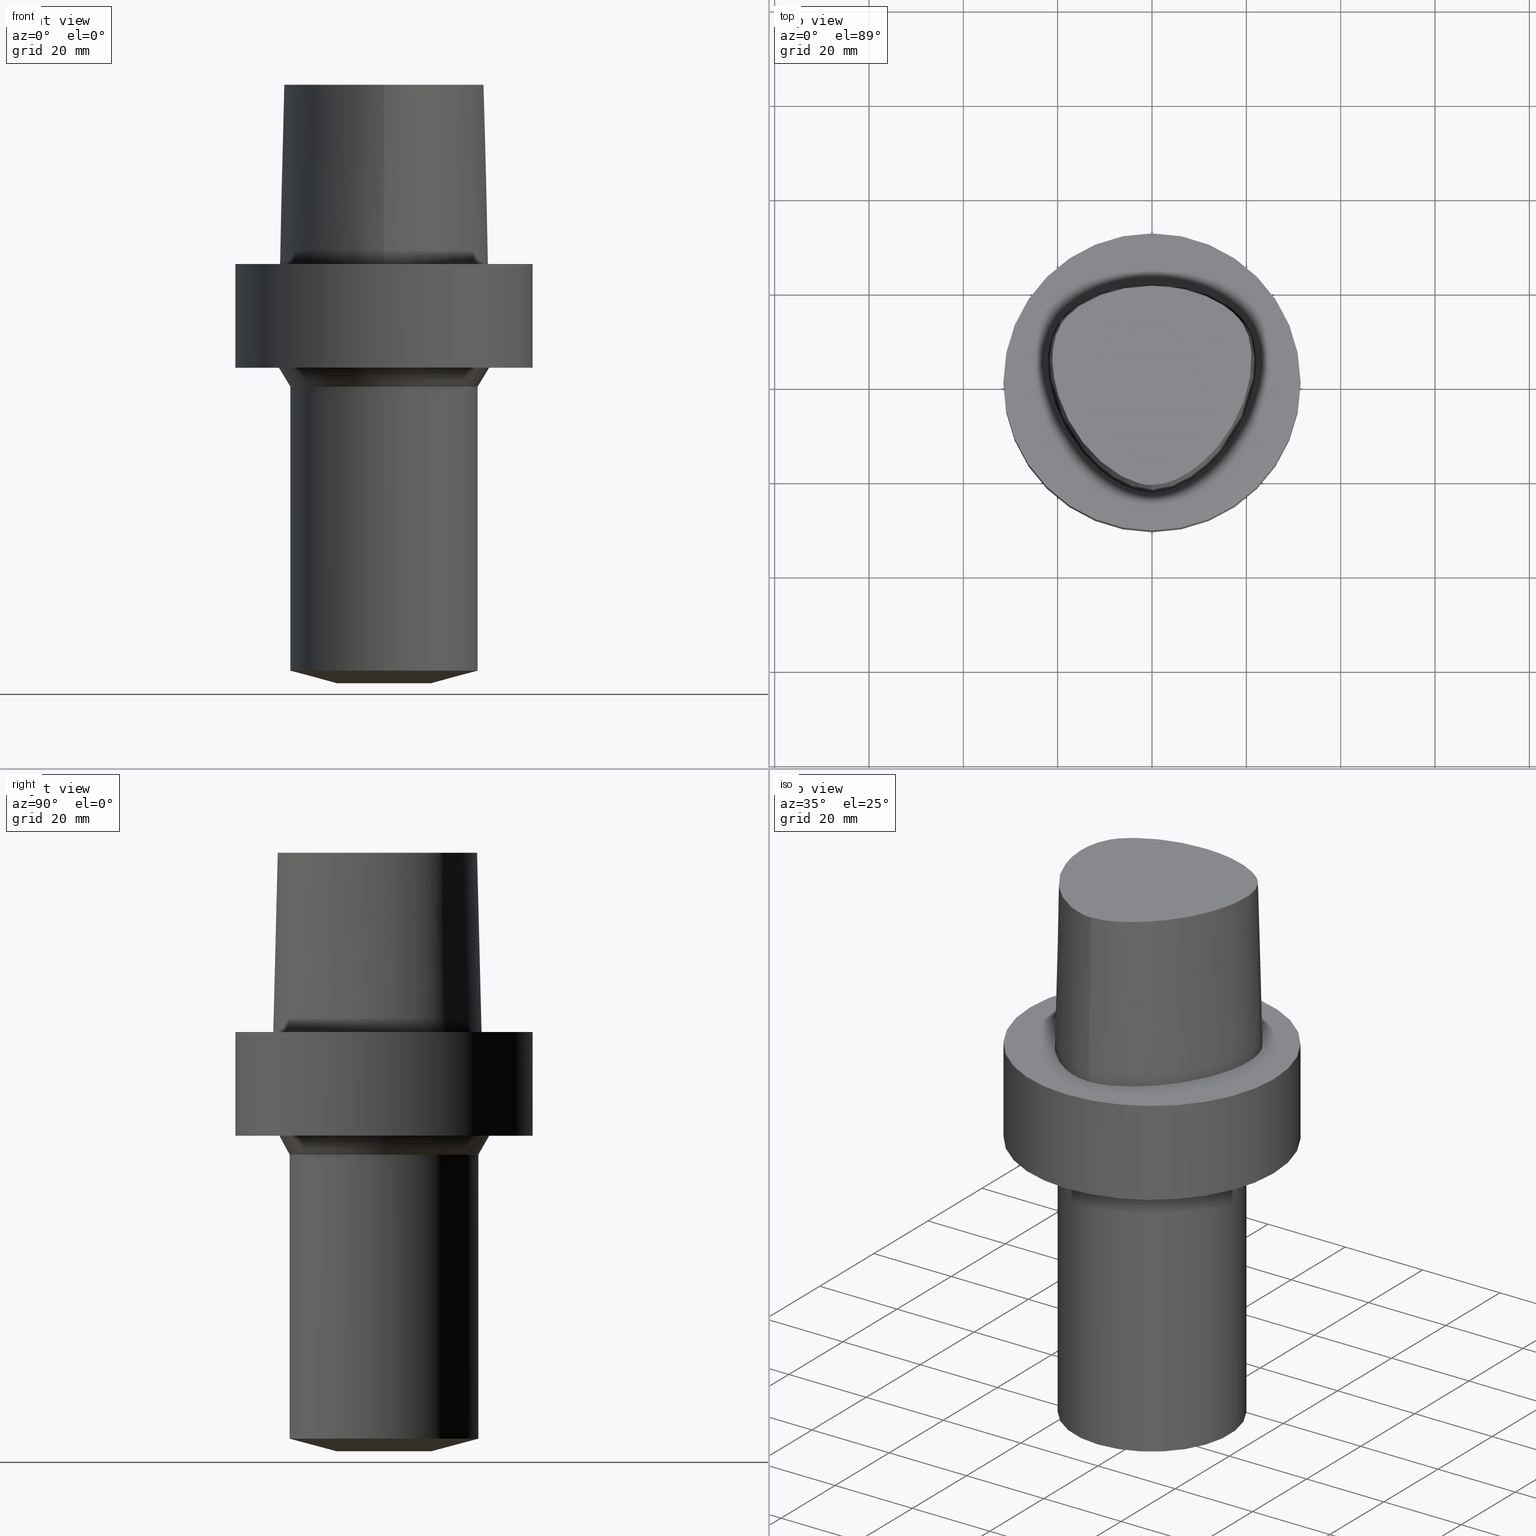
[diagram: canonical four-view strip — front | top / right | iso, engineering-drawing reading convention]
A machine part, canonical four-view strip (front | top / right | iso — engineering-drawing reading convention). The complete STEP part file that produces these views, byte-faithful:
ISO-10303-21;
HEADER;
FILE_DESCRIPTION((''),'1');
FILE_NAME('V:/01_Dxf_Field-HP\X2\FF71FF6FFF8CFF9F5916\X0\2013/BIGKAISER\X2\FF76FF80FF9BFF78FF9E63B28F095206\X0\_BKUS_201803/C6-BSL/C6-BSL.625-3.5.stp','2018-03-14T07:33:26',(''),(''),'Spatial Interop R21 SP3','Kubotek KeyCreator 2011 V10.0.2 (22737)',' ');
FILE_SCHEMA(('automotive_design'));
ENDSEC;
DATA;
#1=MECHANICAL_DESIGN_GEOMETRIC_PRESENTATION_REPRESENTATION(' ',(#10,#11,#12,#13,#14,#15,#16,#17,#18,#19,#20,#21,#22,#23,#24,#25,#26,#27,#28,#29,#30,#31,#32,#33,#34,#35),#6);
#2=PRODUCT_DEFINITION_CONTEXT('',#36,'design');
#3=APPLICATION_PROTOCOL_DEFINITION('INTERNATIONAL STANDARD','automotive_design',1994,#36);
#4=PRODUCT_CATEGORY_RELATIONSHIP('NONE','NONE',#37,#38);
#5=SHAPE_DEFINITION_REPRESENTATION(#39,#40);
#6= (GEOMETRIC_REPRESENTATION_CONTEXT(3)GLOBAL_UNCERTAINTY_ASSIGNED_CONTEXT((#43))GLOBAL_UNIT_ASSIGNED_CONTEXT((#45,#46,#47))REPRESENTATION_CONTEXT('NONE','WORKSPACE'));
#10=STYLED_ITEM('',(#49),#50);
#11=STYLED_ITEM('',(#51,#52),#53);
#12=STYLED_ITEM('',(#54,#55),#56);
#13=STYLED_ITEM('',(#57,#58),#59);
#14=STYLED_ITEM('',(#60,#61),#62);
#15=STYLED_ITEM('',(#63),#64);
#16=STYLED_ITEM('',(#65,#66),#67);
#17=STYLED_ITEM('',(#68),#69);
#18=STYLED_ITEM('',(#70),#71);
#19=STYLED_ITEM('',(#72),#73);
#20=STYLED_ITEM('',(#74),#75);
#21=STYLED_ITEM('',(#76),#77);
#22=STYLED_ITEM('',(#78,#79),#80);
#23=STYLED_ITEM('',(#81,#82),#83);
#24=STYLED_ITEM('',(#84),#85);
#25=STYLED_ITEM('',(#86),#87);
#26=STYLED_ITEM('',(#88),#89);
#27=STYLED_ITEM('',(#90),#91);
#28=STYLED_ITEM('',(#92,#93),#94);
#29=STYLED_ITEM('',(#95),#96);
#30=STYLED_ITEM('',(#97),#98);
#31=STYLED_ITEM('',(#99,#100),#101);
#32=STYLED_ITEM('',(#102,#103),#104);
#33=STYLED_ITEM('',(#105,#106),#107);
#34=STYLED_ITEM('',(#108,#109),#110);
#35=STYLED_ITEM('',(#111),#112);
#36=APPLICATION_CONTEXT(' ');
#37=PRODUCT_CATEGORY('part','NONE');
#38=PRODUCT_RELATED_PRODUCT_CATEGORY('detail',' ',(#113));
#39=PRODUCT_DEFINITION_SHAPE('NONE','NONE',#114);
#40=ADVANCED_BREP_SHAPE_REPRESENTATION('Unnamed[1]',(#53,#115),#6);
#43=UNCERTAINTY_MEASURE_WITH_UNIT(LENGTH_MEASURE(1.0E-006),#45,'','');
#45= (CONVERSION_BASED_UNIT('MILLIMETRE',#118)LENGTH_UNIT()NAMED_UNIT(#121));
#46= (NAMED_UNIT(#123)PLANE_ANGLE_UNIT()SI_UNIT($,.RADIAN.));
#47= (NAMED_UNIT(#123)SOLID_ANGLE_UNIT()SI_UNIT($,.STERADIAN.));
#49=PRESENTATION_STYLE_ASSIGNMENT((#129));
#50=EDGE_CURVE('Unnamed[1]',#130,#131,#132,.T.);
#51=PRESENTATION_STYLE_ASSIGNMENT((#133));
#52=PRESENTATION_STYLE_ASSIGNMENT((#134));
#53=MANIFOLD_SOLID_BREP('Unnamed[1]',#135);
#54=PRESENTATION_STYLE_ASSIGNMENT((#136));
#55=PRESENTATION_STYLE_ASSIGNMENT((#137));
#56=ADVANCED_FACE('Unnamed[1]',(#138),#139,.T.);
#57=PRESENTATION_STYLE_ASSIGNMENT((#140));
#58=PRESENTATION_STYLE_ASSIGNMENT((#141));
#59=ADVANCED_FACE('Unnamed[1]',(#142),#143,.T.);
#60=PRESENTATION_STYLE_ASSIGNMENT((#144));
#61=PRESENTATION_STYLE_ASSIGNMENT((#145));
#62=ADVANCED_FACE('Unnamed[1]',(#146,#147),#148,.T.);
#63=PRESENTATION_STYLE_ASSIGNMENT((#149));
#64=EDGE_CURVE('Unnamed[1]',#130,#150,#151,.T.);
#65=PRESENTATION_STYLE_ASSIGNMENT((#152));
#66=PRESENTATION_STYLE_ASSIGNMENT((#153));
#67=ADVANCED_FACE('Unnamed[1]',(#154,#155),#156,.T.);
#68=PRESENTATION_STYLE_ASSIGNMENT((#157));
#69=EDGE_CURVE('Unnamed[1]',#158,#158,#159,.T.);
#70=PRESENTATION_STYLE_ASSIGNMENT((#160));
#71=EDGE_CURVE('Unnamed[1]',#150,#161,#162,.T.);
#72=PRESENTATION_STYLE_ASSIGNMENT((#163));
#73=EDGE_CURVE('Unnamed[1]',#150,#164,#165,.T.);
#74=PRESENTATION_STYLE_ASSIGNMENT((#166));
#75=EDGE_CURVE('Unnamed[1]',#167,#167,#168,.T.);
#76=PRESENTATION_STYLE_ASSIGNMENT((#169));
#77=EDGE_CURVE('Unnamed[1]',#170,#170,#171,.T.);
#78=PRESENTATION_STYLE_ASSIGNMENT((#172));
#79=PRESENTATION_STYLE_ASSIGNMENT((#173));
#80=ADVANCED_FACE('Unnamed[1]',(#174,#175),#176,.T.);
#81=PRESENTATION_STYLE_ASSIGNMENT((#177));
#82=PRESENTATION_STYLE_ASSIGNMENT((#178));
#83=ADVANCED_FACE('Unnamed[1]',(#179,#180),#181,.T.);
#84=PRESENTATION_STYLE_ASSIGNMENT((#182));
#85=EDGE_CURVE('Unnamed[1]',#161,#131,#183,.T.);
#86=PRESENTATION_STYLE_ASSIGNMENT((#184));
#87=EDGE_CURVE('Unnamed[1]',#131,#164,#185,.T.);
#88=PRESENTATION_STYLE_ASSIGNMENT((#186));
#89=EDGE_CURVE('Unnamed[1]',#150,#130,#187,.T.);
#90=PRESENTATION_STYLE_ASSIGNMENT((#188));
#91=EDGE_CURVE('Unnamed[1]',#164,#161,#189,.T.);
#92=PRESENTATION_STYLE_ASSIGNMENT((#190));
#93=PRESENTATION_STYLE_ASSIGNMENT((#191));
#94=ADVANCED_FACE('Unnamed[1]',(#192),#193,.T.);
#95=PRESENTATION_STYLE_ASSIGNMENT((#194));
#96=EDGE_CURVE('Unnamed[1]',#195,#195,#196,.T.);
#97=PRESENTATION_STYLE_ASSIGNMENT((#197));
#98=EDGE_CURVE('Unnamed[1]',#198,#198,#199,.T.);
#99=PRESENTATION_STYLE_ASSIGNMENT((#200));
#100=PRESENTATION_STYLE_ASSIGNMENT((#201));
#101=ADVANCED_FACE('Unnamed[1]',(#202,#203),#204,.T.);
#102=PRESENTATION_STYLE_ASSIGNMENT((#205));
#103=PRESENTATION_STYLE_ASSIGNMENT((#206));
#104=ADVANCED_FACE('Unnamed[1]',(#207),#208,.T.);
#105=PRESENTATION_STYLE_ASSIGNMENT((#209));
#106=PRESENTATION_STYLE_ASSIGNMENT((#210));
#107=ADVANCED_FACE('Unnamed[1]',(#211,#212),#213,.T.);
#108=PRESENTATION_STYLE_ASSIGNMENT((#214));
#109=PRESENTATION_STYLE_ASSIGNMENT((#215));
#110=ADVANCED_FACE('Unnamed[1]',(#216),#217,.T.);
#111=PRESENTATION_STYLE_ASSIGNMENT((#218));
#112=EDGE_CURVE('Unnamed[1]',#219,#219,#220,.T.);
#113=PRODUCT('Unnamed[1]','Unnamed[1]','PART-Unnamed[1]-DESC',(#221));
#114=PRODUCT_DEFINITION('NONE','NONE',#222,#2);
#115=AXIS2_PLACEMENT_3D('',#223,#224,#225);
#118=LENGTH_MEASURE_WITH_UNIT(LENGTH_MEASURE(1.0),#226);
#121=DIMENSIONAL_EXPONENTS(1.0,0.0,0.0,0.0,0.0,0.0,0.0);
#123=DIMENSIONAL_EXPONENTS(0.0,0.0,0.0,0.0,0.0,0.0,0.0);
#129=CURVE_STYLE('',#227,POSITIVE_LENGTH_MEASURE(1000.0),#228);
#130=VERTEX_POINT('',#229);
#131=VERTEX_POINT('',#230);
#132=LINE('',#231,#232);
#133=SURFACE_STYLE_USAGE(.BOTH.,#233);
#134=CURVE_STYLE('',#234,POSITIVE_LENGTH_MEASURE(1000.0),#235);
#135=CLOSED_SHELL('',(#59,#110,#94,#56,#107,#80,#101,#83,#62,#67,#104));
#136=SURFACE_STYLE_USAGE(.BOTH.,#236);
#137=CURVE_STYLE('',#237,POSITIVE_LENGTH_MEASURE(1000.0),#238);
#138=FACE_OUTER_BOUND('',#239,.T.);
#139=PLANE('',#240);
#140=SURFACE_STYLE_USAGE(.BOTH.,#241);
#141=CURVE_STYLE('',#242,POSITIVE_LENGTH_MEASURE(1000.0),#243);
#142=FACE_OUTER_BOUND('',#244,.T.);
#143=B_SPLINE_SURFACE_WITH_KNOTS('',3,3,((#245,#246,#247,#248),(#249,#250,#251,#252),(#253,#254,#255,#256),(#257,#258,#259,#260),(#261,#262,#263,#264),(#265,#266,#267,#268),(#269,#270,#271,#272),(#273,#274,#275,#276),(#277,#278,#279,#280),(#281,#282,#283,#284),(#285,#286,#287,#288),(#289,#290,#291,#292),(#293,#294,#295,#296),(#297,#298,#299,#300),(#301,#302,#303,#304),(#305,#306,#307,#308),(#309,#310,#311,#312)),.UNSPECIFIED.,.F.,.F.,.F.,(4,1,1,1,1,1,1,1,1,1,1,1,1,1,4),(4,4),(-13.2302678617486,-12.816821991069,-12.4033761203893,-11.9899302497097,-11.57648437903,-11.1630385083504,-10.9563155730106,-10.7495926376707,-10.3361467669911,-9.92270089631145,-9.09580915495216,-8.26891741359287,-7.44202567223358,-7.02857980155394,-6.6151339308743),(-3.8,0.0),.UNSPECIFIED.);
#144=SURFACE_STYLE_USAGE(.BOTH.,#313);
#145=CURVE_STYLE('',#314,POSITIVE_LENGTH_MEASURE(1000.0),#315);
#146=FACE_BOUND('',#316,.T.);
#147=FACE_BOUND('',#317,.T.);
#148=CYLINDRICAL_SURFACE('',#318,19.9999999999962);
#149=CURVE_STYLE('',#319,POSITIVE_LENGTH_MEASURE(1000.0),#320);
#150=VERTEX_POINT('',#321);
#151=B_SPLINE_CURVE_WITH_KNOTS('',3,(#322,#323,#324,#325,#326,#327,#328,#329,#330,#331,#332,#333,#334,#335,#336,#337),.UNSPECIFIED.,.F.,.F.,(4,1,1,1,1,1,1,1,1,1,1,1,1,4),(6.61513393087476,6.99917207152274,7.48193246986995,7.96289324787093,8.45540287038584,9.10291653679981,9.67129810936083,10.1618749681153,10.6358867802489,11.1080734988593,11.6043706019633,12.09451993853,12.6985979284494,13.2302678617486),.UNSPECIFIED.);
#152=SURFACE_STYLE_USAGE(.BOTH.,#338);
#153=CURVE_STYLE('',#339,POSITIVE_LENGTH_MEASURE(1000.0),#340);
#154=FACE_BOUND('',#341,.T.);
#155=FACE_BOUND('',#342,.T.);
#156=CONICAL_SURFACE('',#343,15.0000000000021,1.30899693899576);
#157=CURVE_STYLE('',#344,POSITIVE_LENGTH_MEASURE(1000.0),#345);
#158=VERTEX_POINT('',#346);
#159=CIRCLE('',#347,31.5);
#160=CURVE_STYLE('',#348,POSITIVE_LENGTH_MEASURE(1000.0),#349);
#161=VERTEX_POINT('',#350);
#162=LINE('',#351,#352);
#163=CURVE_STYLE('',#353,POSITIVE_LENGTH_MEASURE(1000.0),#354);
#164=VERTEX_POINT('',#355);
#165=LINE('',#356,#357);
#166=CURVE_STYLE('',#358,POSITIVE_LENGTH_MEASURE(1000.0),#359);
#167=VERTEX_POINT('',#360);
#168=CIRCLE('',#361,31.5);
#169=CURVE_STYLE('',#362,POSITIVE_LENGTH_MEASURE(1000.0),#363);
#170=VERTEX_POINT('',#364);
#171=CIRCLE('',#365,19.9999999999962);
#172=SURFACE_STYLE_USAGE(.BOTH.,#366);
#173=CURVE_STYLE('',#367,POSITIVE_LENGTH_MEASURE(1000.0),#368);
#174=FACE_BOUND('',#369,.T.);
#175=FACE_BOUND('',#370,.T.);
#176=CYLINDRICAL_SURFACE('',#371,31.5);
#177=SURFACE_STYLE_USAGE(.BOTH.,#372);
#178=CURVE_STYLE('',#373,POSITIVE_LENGTH_MEASURE(1000.0),#374);
#179=FACE_BOUND('',#375,.T.);
#180=FACE_BOUND('',#376,.T.);
#181=CONICAL_SURFACE('',#377,21.1547005383783,0.523598775598284);
#182=CURVE_STYLE('',#378,POSITIVE_LENGTH_MEASURE(1000.0),#379);
#183=B_SPLINE_CURVE_WITH_KNOTS('',3,(#380,#381,#382,#383,#384,#385,#386,#387,#388,#389,#390,#391,#392,#393,#394,#395,#396),.UNSPECIFIED.,.F.,.F.,(4,1,1,1,1,1,1,1,1,1,1,1,1,1,4),(-13.2302678617486,-12.816821991069,-12.4033761203893,-11.9899302497097,-11.57648437903,-11.1630385083504,-10.9563155730106,-10.7495926376707,-10.3361467669911,-9.92270089631145,-9.09580915495216,-8.26891741359287,-7.44202567223358,-7.02857980155394,-6.6151339308743),.UNSPECIFIED.);
#184=CURVE_STYLE('',#397,POSITIVE_LENGTH_MEASURE(1000.0),#398);
#185=B_SPLINE_CURVE_WITH_KNOTS('',3,(#399,#400,#401,#402,#403,#404,#405,#406,#407,#408,#409,#410,#411,#412,#413,#414,#415,#416),.UNSPECIFIED.,.F.,.F.,(4,1,1,1,1,1,1,1,1,2,1,1,1,1,4),(-6.6151339308743,-6.20168806019465,-5.78824218951501,-5.37479631883537,-4.96135044815572,-4.13445870679644,-3.30756696543715,-2.89412109475751,-2.48067522407786,-2.06722935339822,-1.65378348271857,-1.24033761203893,-0.826891741359287,-0.413445870679644,0.0),.UNSPECIFIED.);
#186=CURVE_STYLE('',#417,POSITIVE_LENGTH_MEASURE(1000.0),#418);
#187=B_SPLINE_CURVE_WITH_KNOTS('',3,(#419,#420,#421,#422,#423,#424,#425,#426,#427,#428,#429,#430,#431,#432,#433,#434),.UNSPECIFIED.,.F.,.F.,(4,1,1,1,1,1,1,1,1,1,1,1,1,4),(0.0,0.447924670568964,0.9388024242536,1.50591409090711,2.07314340012323,2.72424957442464,3.2253501842849,3.80982102049476,4.34867996267067,4.85900173381144,5.37972031856977,6.03459825488646,6.61113557741484,6.61513393087395),.UNSPECIFIED.);
#188=CURVE_STYLE('',#435,POSITIVE_LENGTH_MEASURE(1000.0),#436);
#189=CIRCLE('',#437,0.949936168436318);
#190=SURFACE_STYLE_USAGE(.BOTH.,#438);
#191=CURVE_STYLE('',#439,POSITIVE_LENGTH_MEASURE(1000.0),#440);
#192=FACE_OUTER_BOUND('',#441,.T.);
#193=CONICAL_SURFACE('',#442,1.0,0.0249931148600041);
#194=CURVE_STYLE('',#443,POSITIVE_LENGTH_MEASURE(1000.0),#444);
#195=VERTEX_POINT('',#445);
#196=CIRCLE('',#446,22.3094010767605);
#197=CURVE_STYLE('',#447,POSITIVE_LENGTH_MEASURE(1000.0),#448);
#198=VERTEX_POINT('',#449);
#199=CIRCLE('',#450,10.000000000008);
#200=SURFACE_STYLE_USAGE(.BOTH.,#451);
#201=CURVE_STYLE('',#452,POSITIVE_LENGTH_MEASURE(1000.0),#453);
#202=FACE_BOUND('',#454,.T.);
#203=FACE_OUTER_BOUND('',#455,.T.);
#204=PLANE('',#456);
#205=SURFACE_STYLE_USAGE(.BOTH.,#457);
#206=CURVE_STYLE('',#458,POSITIVE_LENGTH_MEASURE(1000.0),#459);
#207=FACE_OUTER_BOUND('',#460,.T.);
#208=PLANE('',#461);
#209=SURFACE_STYLE_USAGE(.BOTH.,#462);
#210=CURVE_STYLE('',#463,POSITIVE_LENGTH_MEASURE(1000.0),#464);
#211=FACE_BOUND('',#465,.T.);
#212=FACE_OUTER_BOUND('',#466,.T.);
#213=PLANE('',#467);
#214=SURFACE_STYLE_USAGE(.BOTH.,#468);
#215=CURVE_STYLE('',#469,POSITIVE_LENGTH_MEASURE(1000.0),#470);
#216=FACE_OUTER_BOUND('',#471,.T.);
#217=B_SPLINE_SURFACE_WITH_KNOTS('',3,3,((#472,#473,#474,#475),(#476,#477,#478,#479),(#480,#481,#482,#483),(#484,#485,#486,#487),(#488,#489,#490,#491),(#492,#493,#494,#495),(#496,#497,#498,#499),(#500,#501,#502,#503),(#504,#505,#506,#507),(#508,#509,#510,#511),(#512,#513,#514,#515),(#516,#517,#518,#519),(#520,#521,#522,#523),(#524,#525,#526,#527),(#528,#529,#530,#531),(#532,#533,#534,#535),(#536,#537,#538,#539),(#540,#541,#542,#543)),.UNSPECIFIED.,.F.,.F.,.F.,(4,1,1,1,1,1,1,1,1,2,1,1,1,1,4),(4,4),(-6.6151339308743,-6.20168806019465,-5.78824218951501,-5.37479631883537,-4.96135044815572,-4.13445870679644,-3.30756696543715,-2.89412109475751,-2.48067522407786,-2.06722935339822,-1.65378348271857,-1.24033761203893,-0.826891741359287,-0.413445870679644,0.0),(-3.8,0.0),.UNSPECIFIED.);
#218=CURVE_STYLE('',#544,POSITIVE_LENGTH_MEASURE(1000.0),#545);
#219=VERTEX_POINT('',#546);
#220=CIRCLE('',#547,19.9999999999962);
#221=PRODUCT_CONTEXT('',#36,'mechanical');
#222=PRODUCT_DEFINITION_FORMATION_WITH_SPECIFIED_SOURCE(' ','NONE',#113,.NOT_KNOWN.);
#223=CARTESIAN_POINT('',(0.0,0.0,0.0));
#224=DIRECTION('',(0.0,0.0,1.0));
#225=DIRECTION('',(1.0,0.0,0.0));
#226= (NAMED_UNIT(#121)LENGTH_UNIT()SI_UNIT(.MILLI.,.METRE.));
#227=DRAUGHTING_PRE_DEFINED_CURVE_FONT('continuous');
#228=COLOUR_RGB('',0.0,1.0,0.0);
#229=CARTESIAN_POINT('',(0.038736923393866,-22.5191997536361,38.0));
#230=CARTESIAN_POINT('',(0.04359356758149,-23.4691235068931,7.78075697532443E-032));
#231=CARTESIAN_POINT('',(0.038736923393866,-22.5191997536361,38.0));
#232=VECTOR('',#549,38.0118715498723);
#233=SURFACE_SIDE_STYLE('',(#550));
#234=DRAUGHTING_PRE_DEFINED_CURVE_FONT('continuous');
#235=COLOUR_RGB('',0.0,1.0,0.0);
#236=SURFACE_SIDE_STYLE('',(#551));
#237=DRAUGHTING_PRE_DEFINED_CURVE_FONT('continuous');
#238=COLOUR_RGB('',0.0,1.0,0.0);
#239=EDGE_LOOP('',(#552,#553));
#240=AXIS2_PLACEMENT_3D('',#554,#555,#556);
#241=SURFACE_SIDE_STYLE('',(#557));
#242=DRAUGHTING_PRE_DEFINED_CURVE_FONT('continuous');
#243=COLOUR_RGB('',0.0,1.0,0.0);
#244=EDGE_LOOP('',(#558,#559,#560,#561));
#245=CARTESIAN_POINT('',(-0.001218367817519,19.7276822012873,38.0));
#246=CARTESIAN_POINT('',(0.014082083248157,20.0439577123075,25.3333333333066));
#247=CARTESIAN_POINT('',(0.029382534313671,20.3602332232908,12.6666666666934));
#248=CARTESIAN_POINT('',(0.044682985379347,20.6765087343109,1.61778115328528E-031));
#249=CARTESIAN_POINT('',(1.37788651195108,19.6609652834875,38.0));
#250=CARTESIAN_POINT('',(1.3931885827258,19.9772407169847,25.3333333333066));
#251=CARTESIAN_POINT('',(1.40849065356095,20.2935162254648,12.6666666666934));
#252=CARTESIAN_POINT('',(1.42379272427753,20.6097915814392,8.62816615085482E-032));
#253=CARTESIAN_POINT('',(4.135446440878,19.5347778787784,38.0));
#254=CARTESIAN_POINT('',(4.16466278851883,19.8511031866125,25.3333333333066));
#255=CARTESIAN_POINT('',(4.1938791526746,20.1674284644204,12.6666666666934));
#256=CARTESIAN_POINT('',(4.2230955003445,20.4837538303966,1.4791141972894E-031));
#257=CARTESIAN_POINT('',(8.213607363795,18.7706026638736,38.0));
#258=CARTESIAN_POINT('',(8.29980745008421,19.0767495109635,25.3333333333066));
#259=CARTESIAN_POINT('',(8.38600751285747,19.3828964329996,12.6666666666934));
#260=CARTESIAN_POINT('',(8.47220762821777,19.6890432607088,9.86076131526265E-032));
#261=CARTESIAN_POINT('',(12.1316338645671,17.3698624840857,38.0));
#262=CARTESIAN_POINT('',(12.2591308270381,17.6610739397708,25.3333333333066));
#263=CARTESIAN_POINT('',(12.3866278083543,17.9522853923553,12.6666666666934));
#264=CARTESIAN_POINT('',(12.5141247708253,18.2434968480404,0.0));
#265=CARTESIAN_POINT('',(15.7706546153679,15.3789501349612,38.0));
#266=CARTESIAN_POINT('',(15.9483905900895,15.6437731794811,25.3333333333066));
#267=CARTESIAN_POINT('',(16.1261265513272,15.9085961736944,12.6666666666934));
#268=CARTESIAN_POINT('',(16.3038624872874,16.1734192182143,1.97215226305253E-031));
#269=CARTESIAN_POINT('',(18.4265894256284,13.0570022172893,38.0));
#270=CARTESIAN_POINT('',(18.6659567517146,13.2725589420689,25.3333333333066));
#271=CARTESIAN_POINT('',(18.9053240921419,13.4881156488541,12.6666666666934));
#272=CARTESIAN_POINT('',(19.1446913988473,13.7036723639434,-1.97215226305253E-031));
#273=CARTESIAN_POINT('',(19.8679958653038,10.6923771981998,38.0));
#274=CARTESIAN_POINT('',(20.1559937048299,10.8287388264873,25.3333333333066));
#275=CARTESIAN_POINT('',(20.4439915656177,10.965100461641,12.6666666666934));
#276=CARTESIAN_POINT('',(20.7319894342149,11.1014620996188,0.0));
#277=CARTESIAN_POINT('',(20.8470867582337,8.07149548576131,38.0));
#278=CARTESIAN_POINT('',(21.1591164072431,8.14132775555392,25.3333333333066));
#279=CARTESIAN_POINT('',(21.4711459821861,8.21116003697855,12.6666666666934));
#280=CARTESIAN_POINT('',(21.7831756505763,8.28099229708081,-1.97215226305253E-031));
#281=CARTESIAN_POINT('',(21.2693244256982,4.61157245650171,38.0));
#282=CARTESIAN_POINT('',(21.5881576801997,4.6105997689982,25.3333333333066));
#283=CARTESIAN_POINT('',(21.9069908544037,4.60962709346857,12.6666666666934));
#284=CARTESIAN_POINT('',(22.2258240701438,4.60865440596506,0.0));
#285=CARTESIAN_POINT('',(20.8071610855575,-0.912828649855193,38.0));
#286=CARTESIAN_POINT('',(21.119311671178,-0.979640884839481,25.3333333333066));
#287=CARTESIAN_POINT('',(21.4314624224461,-1.04645306732201,12.6666666666934));
#288=CARTESIAN_POINT('',(21.7436130080666,-1.11326526354485,0.0));
#289=CARTESIAN_POINT('',(18.6841935581315,-7.54428794252837,38.0));
#290=CARTESIAN_POINT('',(18.9734452551861,-7.6809665891091,25.3333333333066));
#291=CARTESIAN_POINT('',(19.2626970689956,-7.81764505382656,12.6666666666934));
#292=CARTESIAN_POINT('',(19.5519487660502,-7.95432366164584,0.0));
#293=CARTESIAN_POINT('',(14.2175552814,-14.5971504342323,38.0));
#294=CARTESIAN_POINT('',(14.4641757465198,-14.8010930946929,25.3333333333066));
#295=CARTESIAN_POINT('',(14.710796247264,-15.0050359737917,12.6666666666934));
#296=CARTESIAN_POINT('',(14.9574167123838,-15.2089785567293,0.0));
#297=CARTESIAN_POINT('',(9.0844808732933,-19.3179298129689,38.0));
#298=CARTESIAN_POINT('',(9.27912152349017,-19.572866915557,25.3333333333066));
#299=CARTESIAN_POINT('',(9.47376218971294,-19.827804295621,12.6666666666934));
#300=CARTESIAN_POINT('',(9.66840283021945,-20.0827414369705,-9.86076131526265E-032));
#301=CARTESIAN_POINT('',(4.17112919194182,-21.8987568152736,38.0));
#302=CARTESIAN_POINT('',(4.28618163483998,-22.1973837173649,25.3333333333066));
#303=CARTESIAN_POINT('',(4.40123406239433,-22.4960105163661,12.6666666666934));
#304=CARTESIAN_POINT('',(4.51628650521788,-22.7946374572188,-9.86076131526265E-032));
#305=CARTESIAN_POINT('',(1.41533654381097,-22.5120888467812,38.0));
#306=CARTESIAN_POINT('',(1.46311520162011,-22.8284916374445,25.3333333333066));
#307=CARTESIAN_POINT('',(1.51089385942236,-23.144894486341,12.6666666666934));
#308=CARTESIAN_POINT('',(1.55867251738073,-23.4612972770043,-1.23259516440783E-032));
#309=CARTESIAN_POINT('',(0.038736923393866,-22.5191997536361,38.0));
#310=CARTESIAN_POINT('',(0.04035580478973,-22.8358410047159,25.3333333333066));
#311=CARTESIAN_POINT('',(0.041974686185626,-23.1524822558133,12.6666666666934));
#312=CARTESIAN_POINT('',(0.04359356758149,-23.4691235068931,7.78075697532443E-032));
#313=SURFACE_SIDE_STYLE('',(#562));
#314=DRAUGHTING_PRE_DEFINED_CURVE_FONT('continuous');
#315=COLOUR_RGB('',0.0,1.0,0.0);
#316=EDGE_LOOP('',(#563));
#317=EDGE_LOOP('',(#564));
#318=AXIS2_PLACEMENT_3D('',#565,#566,#567);
#319=DRAUGHTING_PRE_DEFINED_CURVE_FONT('continuous');
#320=COLOUR_RGB('',0.0,1.0,0.0);
#321=CARTESIAN_POINT('',(-0.001218547003662,19.7276821925089,38.0));
#322=CARTESIAN_POINT('',(0.038736923394311,-22.519199753636,38.0));
#323=CARTESIAN_POINT('',(1.31742058183662,-22.512662269405,38.0));
#324=CARTESIAN_POINT('',(4.2093773447498,-21.9116226439989,38.0));
#325=CARTESIAN_POINT('',(8.20895504542113,-19.7798683845067,38.0));
#326=CARTESIAN_POINT('',(11.9784633234593,-16.681663904162,38.0));
#327=CARTESIAN_POINT('',(15.5308821579362,-12.5807487594113,38.0));
#328=CARTESIAN_POINT('',(18.4566248438667,-7.64932246015528,38.0));
#329=CARTESIAN_POINT('',(20.4036090752029,-2.27012499825289,38.0));
#330=CARTESIAN_POINT('',(21.2357187429189,2.79891401173156,38.0));
#331=CARTESIAN_POINT('',(21.0811206267748,7.62543090736657,38.0));
#332=CARTESIAN_POINT('',(19.3383577336563,12.2772250726194,38.0));
#333=CARTESIAN_POINT('',(15.5796322014404,15.5799672120682,38.0));
#334=CARTESIAN_POINT('',(10.8392956074438,17.9834601687347,38.0));
#335=CARTESIAN_POINT('',(5.56068045850571,19.4586143858472,38.0));
#336=CARTESIAN_POINT('',(1.77223893711014,19.6418877095654,38.0));
#337=CARTESIAN_POINT('',(-0.001218367817519,19.7276822012873,38.0));
#338=SURFACE_SIDE_STYLE('',(#568));
#339=DRAUGHTING_PRE_DEFINED_CURVE_FONT('continuous');
#340=COLOUR_RGB('',0.0,1.0,0.0);
#341=EDGE_LOOP('',(#569));
#342=EDGE_LOOP('',(#570));
#343=AXIS2_PLACEMENT_3D('',#571,#572,#573);
#344=DRAUGHTING_PRE_DEFINED_CURVE_FONT('continuous');
#345=COLOUR_RGB('',0.0,1.0,0.0);
#346=CARTESIAN_POINT('',(-3.88267476788467E-031,31.5,3.85763741731416E-015));
#347=AXIS2_PLACEMENT_3D('',#574,#575,#576);
#348=DRAUGHTING_PRE_DEFINED_CURVE_FONT('continuous');
#349=COLOUR_RGB('',0.0,1.0,0.0);
#350=CARTESIAN_POINT('',(0.044682985379347,20.6765087343109,1.61778115328528E-031));
#351=CARTESIAN_POINT('',(-0.001218547003662,19.7276821925089,38.0));
#352=VECTOR('',#577,38.0118715503078);
#353=DRAUGHTING_PRE_DEFINED_CURVE_FONT('continuous');
#354=COLOUR_RGB('',0.0,1.0,0.0);
#355=CARTESIAN_POINT('',(-0.045171994691285,20.6766009553285,1.6755590516169E-031));
#356=CARTESIAN_POINT('',(-0.001218547003662,19.7276821925089,38.0));
#357=VECTOR('',#578,38.0118715498723);
#358=DRAUGHTING_PRE_DEFINED_CURVE_FONT('continuous');
#359=COLOUR_RGB('',0.0,1.0,0.0);
#360=CARTESIAN_POINT('',(1.34711147906209E-015,31.5,-22.0));
#361=AXIS2_PLACEMENT_3D('',#579,#580,#581);
#362=DRAUGHTING_PRE_DEFINED_CURVE_FONT('continuous');
#363=COLOUR_RGB('',0.0,1.0,0.0);
#364=CARTESIAN_POINT('',(5.27948346178823E-015,19.9999999999962,-86.2205080757));
#365=AXIS2_PLACEMENT_3D('',#582,#583,#584);
#366=SURFACE_SIDE_STYLE('',(#585));
#367=DRAUGHTING_PRE_DEFINED_CURVE_FONT('continuous');
#368=COLOUR_RGB('',0.0,1.0,0.0);
#369=EDGE_LOOP('',(#586));
#370=EDGE_LOOP('',(#587));
#371=AXIS2_PLACEMENT_3D('',#588,#589,#590);
#372=SURFACE_SIDE_STYLE('',(#591));
#373=DRAUGHTING_PRE_DEFINED_CURVE_FONT('continuous');
#374=COLOUR_RGB('',0.0,1.0,0.0);
#375=EDGE_LOOP('',(#592));
#376=EDGE_LOOP('',(#593));
#377=AXIS2_PLACEMENT_3D('',#594,#595,#596);
#378=DRAUGHTING_PRE_DEFINED_CURVE_FONT('continuous');
#379=COLOUR_RGB('',0.0,1.0,0.0);
#380=CARTESIAN_POINT('',(0.044682985379347,20.6765087343109,1.61778115328528E-031));
#381=CARTESIAN_POINT('',(1.42379272427753,20.6097915814392,8.62816615085482E-032));
#382=CARTESIAN_POINT('',(4.2230955003445,20.4837538303966,1.4791141972894E-031));
#383=CARTESIAN_POINT('',(8.47220762821777,19.6890432607088,9.86076131526265E-032));
#384=CARTESIAN_POINT('',(12.5141247708253,18.2434968480404,0.0));
#385=CARTESIAN_POINT('',(16.3038624872874,16.1734192182143,1.97215226305253E-031));
#386=CARTESIAN_POINT('',(19.1446913988473,13.7036723639434,-1.97215226305253E-031));
#387=CARTESIAN_POINT('',(20.7319894342149,11.1014620996188,0.0));
#388=CARTESIAN_POINT('',(21.7831756505763,8.28099229708081,-1.97215226305253E-031));
#389=CARTESIAN_POINT('',(22.2258240701438,4.60865440596506,0.0));
#390=CARTESIAN_POINT('',(21.7436130080666,-1.11326526354485,0.0));
#391=CARTESIAN_POINT('',(19.5519487660502,-7.95432366164584,0.0));
#392=CARTESIAN_POINT('',(14.9574167123838,-15.2089785567293,0.0));
#393=CARTESIAN_POINT('',(9.66840283021945,-20.0827414369705,-9.86076131526265E-032));
#394=CARTESIAN_POINT('',(4.51628650521788,-22.7946374572188,-9.86076131526265E-032));
#395=CARTESIAN_POINT('',(1.55867251738073,-23.4612972770043,-1.23259516440783E-032));
#396=CARTESIAN_POINT('',(0.04359356758149,-23.4691235068931,7.78075697532443E-032));
#397=DRAUGHTING_PRE_DEFINED_CURVE_FONT('continuous');
#398=COLOUR_RGB('',0.0,1.0,0.0);
#399=CARTESIAN_POINT('',(0.04359356758149,-23.4691235068931,7.78075697532443E-032));
#400=CARTESIAN_POINT('',(-1.4714994713963,-23.4767895315797,2.46519032881566E-032));
#401=CARTESIAN_POINT('',(-4.43923476371401,-22.821149804767,-4.93038065763132E-032));
#402=CARTESIAN_POINT('',(-8.35043230079961,-20.8000751253325,-9.86076131526265E-032));
#403=CARTESIAN_POINT('',(-11.744900222602,-18.1556117874078,-1.97215226305253E-031));
#404=CARTESIAN_POINT('',(-15.6989602501314,-14.0406306929147,-1.97215226305253E-031));
#405=CARTESIAN_POINT('',(-19.5352875070682,-8.00624990770787,1.97215226305253E-031));
#406=CARTESIAN_POINT('',(-21.7205626190491,-1.16081708945282,0.0));
#407=CARTESIAN_POINT('',(-22.2486616783342,4.54965558738736,0.0));
#408=CARTESIAN_POINT('',(-21.6646421256468,9.00229539124618,0.0));
#409=CARTESIAN_POINT('',(-20.3945635471922,11.7780544971003,0.0));
#410=CARTESIAN_POINT('',(-18.5925528034471,14.1980602922581,0.0));
#411=CARTESIAN_POINT('',(-16.3226584122258,16.1777748720707,0.0));
#412=CARTESIAN_POINT('',(-12.5076407874579,18.2524201541303,9.86076131526265E-032));
#413=CARTESIAN_POINT('',(-8.46776192107786,19.679114377952,9.86076131526265E-032));
#414=CARTESIAN_POINT('',(-4.23043497193604,20.487781597334,1.97215226305253E-031));
#415=CARTESIAN_POINT('',(-1.42313094248379,20.6127745766442,1.10933564796705E-031));
#416=CARTESIAN_POINT('',(-0.045171994691285,20.6766009553285,1.6755590516169E-031));
#417=DRAUGHTING_PRE_DEFINED_CURVE_FONT('continuous');
#418=COLOUR_RGB('',0.0,1.0,0.0);
#419=CARTESIAN_POINT('',(-0.001218547003662,19.7276821925089,38.0));
#420=CARTESIAN_POINT('',(-1.49408492138443,19.6585333605309,38.0));
#421=CARTESIAN_POINT('',(-4.62297391420352,19.513604770166,38.0));
#422=CARTESIAN_POINT('',(-9.56160616752212,18.4291575730197,38.0));
#423=CARTESIAN_POINT('',(-14.5427684976927,16.2697452580488,38.0));
#424=CARTESIAN_POINT('',(-19.4315563551602,12.5302108980807,38.0));
#425=CARTESIAN_POINT('',(-21.306358833612,6.76352894547076,38.0));
#426=CARTESIAN_POINT('',(-21.0724946936277,0.957075236984038,38.0));
#427=CARTESIAN_POINT('',(-19.7876470880144,-4.34628503581652,38.0));
#428=CARTESIAN_POINT('',(-17.5396999600095,-9.33314444653089,38.0));
#429=CARTESIAN_POINT('',(-14.645447733857,-13.7185760345629,38.0));
#430=CARTESIAN_POINT('',(-10.7996726536643,-17.856257282137,38.0));
#431=CARTESIAN_POINT('',(-6.00479510196376,-21.2687382067675,38.0));
#432=CARTESIAN_POINT('',(-1.90747171908525,-22.5250621415864,38.0));
#433=CARTESIAN_POINT('',(0.025424107066464,-22.5192678176378,38.0));
#434=CARTESIAN_POINT('',(0.038736923394311,-22.519199753636,38.0));
#435=DRAUGHTING_PRE_DEFINED_CURVE_FONT('continuous');
#436=COLOUR_RGB('',0.0,1.0,0.0);
#437=AXIS2_PLACEMENT_3D('',#597,#598,#599);
#438=SURFACE_SIDE_STYLE('',(#600));
#439=DRAUGHTING_PRE_DEFINED_CURVE_FONT('continuous');
#440=COLOUR_RGB('',0.0,1.0,0.0);
#441=EDGE_LOOP('',(#601,#602,#603));
#442=AXIS2_PLACEMENT_3D('',#604,#605,#606);
#443=DRAUGHTING_PRE_DEFINED_CURVE_FONT('continuous');
#444=COLOUR_RGB('',0.0,1.0,0.0);
#445=CARTESIAN_POINT('',(1.34711147906209E-015,22.3094010767605,-22.0));
#446=AXIS2_PLACEMENT_3D('',#607,#608,#609);
#447=DRAUGHTING_PRE_DEFINED_CURVE_FONT('continuous');
#448=COLOUR_RGB('',0.0,1.0,0.0);
#449=CARTESIAN_POINT('',(5.44355502221047E-015,10.000000000008,-88.900000000008));
#450=AXIS2_PLACEMENT_3D('',#610,#611,#612);
#451=SURFACE_SIDE_STYLE('',(#613));
#452=DRAUGHTING_PRE_DEFINED_CURVE_FONT('continuous');
#453=COLOUR_RGB('',0.0,1.0,0.0);
#454=EDGE_LOOP('',(#614));
#455=EDGE_LOOP('',(#615));
#456=AXIS2_PLACEMENT_3D('',#616,#617,#618);
#457=SURFACE_SIDE_STYLE('',(#619));
#458=DRAUGHTING_PRE_DEFINED_CURVE_FONT('continuous');
#459=COLOUR_RGB('',0.0,1.0,0.0);
#460=EDGE_LOOP('',(#620));
#461=AXIS2_PLACEMENT_3D('',#621,#622,#623);
#462=SURFACE_SIDE_STYLE('',(#624));
#463=DRAUGHTING_PRE_DEFINED_CURVE_FONT('continuous');
#464=COLOUR_RGB('',0.0,1.0,0.0);
#465=EDGE_LOOP('',(#625,#626,#627));
#466=EDGE_LOOP('',(#628));
#467=AXIS2_PLACEMENT_3D('',#629,#630,#631);
#468=SURFACE_SIDE_STYLE('',(#632));
#469=DRAUGHTING_PRE_DEFINED_CURVE_FONT('continuous');
#470=COLOUR_RGB('',0.0,1.0,0.0);
#471=EDGE_LOOP('',(#633,#634,#635,#636));
#472=CARTESIAN_POINT('',(0.038736923393866,-22.5191997536361,38.0));
#473=CARTESIAN_POINT('',(0.04035580478973,-22.8358410047159,25.3333333333066));
#474=CARTESIAN_POINT('',(0.041974686185626,-23.1524822558133,12.6666666666934));
#475=CARTESIAN_POINT('',(0.04359356758149,-23.4691235068931,7.78075697532443E-032));
#476=CARTESIAN_POINT('',(-1.33786123484754,-22.5261650259856,38.0));
#477=CARTESIAN_POINT('',(-1.38240731367927,-22.8430399310626,25.3333333333066));
#478=CARTESIAN_POINT('',(-1.42695339249092,-23.1599147815484,12.6666666666934));
#479=CARTESIAN_POINT('',(-1.4714994713963,-23.4767895315797,2.46519032881566E-032));
#480=CARTESIAN_POINT('',(-4.08909358431842,-21.9268839879558,38.0));
#481=CARTESIAN_POINT('',(-4.20580731135515,-22.2249725500078,25.3333333333066));
#482=CARTESIAN_POINT('',(-4.32252104640446,-22.5230611651922,12.6666666666934));
#483=CARTESIAN_POINT('',(-4.43923476371401,-22.821149804767,-4.93038065763132E-032));
#484=CARTESIAN_POINT('',(-7.8333083619947,-19.9973514861616,38.0));
#485=CARTESIAN_POINT('',(-8.00568301809614,-20.2649260859405,25.3333333333066));
#486=CARTESIAN_POINT('',(-8.1780576640789,-20.532500564315,12.6666666666934));
#487=CARTESIAN_POINT('',(-8.35043230079961,-20.8000751253325,-9.86076131526265E-032));
#488=CARTESIAN_POINT('',(-11.1035071147626,-17.450554957873,38.0));
#489=CARTESIAN_POINT('',(-11.3173048160562,-17.6855739222454,25.3333333333066));
#490=CARTESIAN_POINT('',(-11.5311025116181,-17.9205928617968,12.6666666666934));
#491=CARTESIAN_POINT('',(-11.744900222602,-18.1556117874078,-1.97215226305253E-031));
#492=CARTESIAN_POINT('',(-14.9379535189057,-13.461132049697,38.0));
#493=CARTESIAN_POINT('',(-15.191622410671,-13.6542981711372,25.3333333333066));
#494=CARTESIAN_POINT('',(-15.4452913389853,-13.8474645327131,12.6666666666934));
#495=CARTESIAN_POINT('',(-15.6989602501314,-14.0406306929147,-1.97215226305253E-031));
#496=CARTESIAN_POINT('',(-18.6681263017223,-7.59391757463204,38.0));
#497=CARTESIAN_POINT('',(-18.9571800800711,-7.73136168081928,25.3333333333066));
#498=CARTESIAN_POINT('',(-19.2462337287194,-7.86880572399774,12.6666666666934));
#499=CARTESIAN_POINT('',(-19.5352875070682,-8.00624990770787,1.97215226305253E-031));
#500=CARTESIAN_POINT('',(-20.7857899858339,-0.952862819790525,38.0));
#501=CARTESIAN_POINT('',(-21.0973808305434,-1.02218087467418,25.3333333333066));
#502=CARTESIAN_POINT('',(-21.408971677436,-1.09149899580772,12.6666666666934));
#503=CARTESIAN_POINT('',(-21.7205626190491,-1.16081708945282,0.0));
#504=CARTESIAN_POINT('',(-21.2911760556836,4.5469215763113,38.0));
#505=CARTESIAN_POINT('',(-21.610337904926,4.54783292082248,25.3333333333066));
#506=CARTESIAN_POINT('',(-21.9294998290918,4.54874426225691,12.6666666666934));
#507=CARTESIAN_POINT('',(-22.2486616783342,4.54965558738736,0.0));
#508=CARTESIAN_POINT('',(-20.7345309521958,8.74909381391006,38.0));
#509=CARTESIAN_POINT('',(-21.0445680426217,8.83349432450556,25.3333333333066));
#510=CARTESIAN_POINT('',(-21.3546050933631,8.91789488065068,12.6666666666934));
#511=CARTESIAN_POINT('',(-21.6646421256468,9.00229539124618,0.0));
#512=CARTESIAN_POINT('',(-19.5531512296439,11.3174844040833,38.0));
#513=CARTESIAN_POINT('',(-19.8336219699984,11.4710077674213,25.3333333333066));
#514=CARTESIAN_POINT('',(-20.1140927680763,11.6245311337623,12.6666666666934));
#515=CARTESIAN_POINT('',(-20.3945635471922,11.7780544971003,0.0));
#516=CARTESIAN_POINT('',(-17.9100913688793,13.524027510437,38.0));
#517=CARTESIAN_POINT('',(-18.1375785458768,13.7487051053655,25.3333333333066));
#518=CARTESIAN_POINT('',(-18.365065665211,13.9733826973296,12.6666666666934));
#519=CARTESIAN_POINT('',(-18.5925528034471,14.1980602922581,0.0));
#520=CARTESIAN_POINT('',(-15.7996349656398,15.3762170634413,38.0));
#521=CARTESIAN_POINT('',(-15.9739761051783,15.6434029846179,25.3333333333066));
#522=CARTESIAN_POINT('',(-16.1483172726872,15.9105889315134,12.6666666666934));
#523=CARTESIAN_POINT('',(-16.3226584122258,16.1777748720707,0.0));
#524=CARTESIAN_POINT('',(-12.1175640002064,17.3825162484012,38.0));
#525=CARTESIAN_POINT('',(-12.2475895903055,17.6724842099619,25.3333333333066));
#526=CARTESIAN_POINT('',(-12.3776152070492,17.9624521925696,12.6666666666934));
#527=CARTESIAN_POINT('',(-12.5076407874579,18.2524201541303,9.86076131526265E-032));
#528=CARTESIAN_POINT('',(-8.21761151654222,18.7588585989994,38.0));
#529=CARTESIAN_POINT('',(-8.30099497910627,19.0656105427881,25.3333333333066));
#530=CARTESIAN_POINT('',(-8.38437843913309,19.3723624535439,12.6666666666934));
#531=CARTESIAN_POINT('',(-8.46776192107786,19.679114377952,9.86076131526265E-032));
#532=CARTESIAN_POINT('',(-4.13466093881225,19.5396850837055,38.0));
#533=CARTESIAN_POINT('',(-4.16658562115465,19.8557172636973,25.3333333333066));
#534=CARTESIAN_POINT('',(-4.19851029939059,20.1717494367229,12.6666666666934));
#535=CARTESIAN_POINT('',(-4.23043497193604,20.487781597334,1.97215226305253E-031));
#536=CARTESIAN_POINT('',(-1.37917220403684,19.6638560588908,38.0));
#537=CARTESIAN_POINT('',(-1.39382511685176,19.98016223565,25.3333333333066));
#538=CARTESIAN_POINT('',(-1.40847802945569,20.296468399885,12.6666666666934));
#539=CARTESIAN_POINT('',(-1.42313094248379,20.6127745766442,1.10933564796705E-031));
#540=CARTESIAN_POINT('',(-0.001218547003662,19.7276821925089,38.0));
#541=CARTESIAN_POINT('',(-0.015869696232855,20.043988446791,25.3333333333066));
#542=CARTESIAN_POINT('',(-0.030520845462092,20.3602947010464,12.6666666666934));
#543=CARTESIAN_POINT('',(-0.045171994691285,20.6766009553285,1.6755590516169E-031));
#544=DRAUGHTING_PRE_DEFINED_CURVE_FONT('continuous');
#545=COLOUR_RGB('',0.0,1.0,0.0);
#546=CARTESIAN_POINT('',(1.59204083889218E-015,19.9999999999962,-26.0000000000101));
#547=AXIS2_PLACEMENT_3D('',#637,#638,#639);
#549=DIRECTION('',(0.000127766510556,-0.024990186342461,-0.999687688361864));
#550=SURFACE_STYLE_FILL_AREA(#640);
#551=SURFACE_STYLE_FILL_AREA(#641);
#552=ORIENTED_EDGE('',*,*,#89,.T.);
#553=ORIENTED_EDGE('',*,*,#64,.T.);
#554=CARTESIAN_POINT('',(0.008647668684817,1.77491953635526,38.0));
#555=DIRECTION('',(-0.0,2.95577857036584E-049,1.0));
#556=DIRECTION('',(1.0,0.0,0.0));
#557=SURFACE_STYLE_FILL_AREA(#642);
#558=ORIENTED_EDGE('',*,*,#85,.F.);
#559=ORIENTED_EDGE('',*,*,#71,.F.);
#560=ORIENTED_EDGE('',*,*,#64,.F.);
#561=ORIENTED_EDGE('',*,*,#50,.T.);
#562=SURFACE_STYLE_FILL_AREA(#643);
#563=ORIENTED_EDGE('',*,*,#77,.F.);
#564=ORIENTED_EDGE('',*,*,#112,.T.);
#565=CARTESIAN_POINT('',(3.4357621503402E-015,6.87152430068041E-015,-56.1102540378551));
#566=DIRECTION('',(6.12323399573677E-017,1.22464679914735E-016,-1.0));
#567=DIRECTION('',(-1.23259516440783E-032,1.0,1.22464679914735E-016));
#568=SURFACE_STYLE_FILL_AREA(#644);
#569=ORIENTED_EDGE('',*,*,#98,.F.);
#570=ORIENTED_EDGE('',*,*,#77,.T.);
#571=CARTESIAN_POINT('',(5.36151924199935E-015,1.07230384839987E-014,-87.560254037854));
#572=DIRECTION('',(-6.12323399573677E-017,-1.22464679914735E-016,1.0));
#573=DIRECTION('',(-1.23259516440783E-032,1.0,1.22464679914735E-016));
#574=CARTESIAN_POINT('',(0.0,0.0,0.0));
#575=DIRECTION('',(6.12323399573677E-017,1.22464679914735E-016,-1.0));
#576=DIRECTION('',(-1.23259516440783E-032,1.0,1.22464679914735E-016));
#577=DIRECTION('',(0.001207557810519,0.024961321374199,-0.999687688350411));
#578=DIRECTION('',(-0.001156308434589,0.02496374748543,-0.999687688361864));
#579=CARTESIAN_POINT('',(1.34711147906209E-015,2.69422295812418E-015,-22.0));
#580=DIRECTION('',(6.12323399573677E-017,1.22464679914735E-016,-1.0));
#581=DIRECTION('',(-1.23259516440783E-032,1.0,1.22464679914735E-016));
#582=CARTESIAN_POINT('',(5.27948346178823E-015,1.05589669235765E-014,-86.2205080757));
#583=DIRECTION('',(6.12323399573677E-017,1.22464679914735E-016,-1.0));
#584=DIRECTION('',(-1.23259516440783E-032,1.0,1.22464679914735E-016));
#585=SURFACE_STYLE_FILL_AREA(#645);
#586=ORIENTED_EDGE('',*,*,#75,.F.);
#587=ORIENTED_EDGE('',*,*,#69,.T.);
#588=CARTESIAN_POINT('',(6.73555739531044E-016,1.34711147906209E-015,-11.0));
#589=DIRECTION('',(6.12323399573677E-017,1.22464679914735E-016,-1.0));
#590=DIRECTION('',(-1.23259516440783E-032,1.0,1.22464679914735E-016));
#591=SURFACE_STYLE_FILL_AREA(#646);
#592=ORIENTED_EDGE('',*,*,#112,.F.);
#593=ORIENTED_EDGE('',*,*,#96,.T.);
#594=CARTESIAN_POINT('',(1.46957615897713E-015,2.93915231795427E-015,-24.0000000000051));
#595=DIRECTION('',(-6.12323399573677E-017,-1.22464679914735E-016,1.0));
#596=DIRECTION('',(-1.23259516440783E-032,1.0,1.22464679914735E-016));
#597=CARTESIAN_POINT('',(-0.001218547003662,19.7276821925089,1.97178046083078E-015));
#598=DIRECTION('',(6.12323399573677E-017,1.22464679914735E-016,-1.0));
#599=DIRECTION('',(-0.046269895968506,0.998928974816059,1.19500303158668E-016));
#600=SURFACE_STYLE_FILL_AREA(#647);
#601=ORIENTED_EDGE('',*,*,#91,.F.);
#602=ORIENTED_EDGE('',*,*,#73,.F.);
#603=ORIENTED_EDGE('',*,*,#71,.T.);
#604=CARTESIAN_POINT('',(-0.001218547003662,19.7276821925089,-2.00268782779425));
#605=DIRECTION('',(2.1678647975542E-051,-3.42380273908985E-049,-1.0));
#606=DIRECTION('',(-0.046269895968506,0.99892897481606,-3.42113882891801E-049));
#607=CARTESIAN_POINT('',(1.34711147906209E-015,2.69422295812418E-015,-22.0));
#608=DIRECTION('',(6.12323399573677E-017,1.22464679914735E-016,-1.0));
#609=DIRECTION('',(-1.23259516440783E-032,1.0,1.22464679914735E-016));
#610=CARTESIAN_POINT('',(5.44355502221047E-015,1.08871100444209E-014,-88.900000000008));
#611=DIRECTION('',(6.12323399573677E-017,1.22464679914735E-016,-1.0));
#612=DIRECTION('',(-1.23259516440783E-032,1.0,1.22464679914735E-016));
#613=SURFACE_STYLE_FILL_AREA(#648);
#614=ORIENTED_EDGE('',*,*,#96,.F.);
#615=ORIENTED_EDGE('',*,*,#75,.T.);
#616=CARTESIAN_POINT('',(1.34711147906209E-015,26.9047005383802,-22.0));
#617=DIRECTION('',(6.12323399573677E-017,1.22464679914735E-016,-1.0));
#618=DIRECTION('',(-1.23259516440783E-032,1.0,1.22464679914735E-016));
#619=SURFACE_STYLE_FILL_AREA(#649);
#620=ORIENTED_EDGE('',*,*,#98,.T.);
#621=CARTESIAN_POINT('',(5.44355502221047E-015,5.00000000000402,-88.900000000008));
#622=DIRECTION('',(6.12323399573677E-017,1.22464679914735E-016,-1.0));
#623=DIRECTION('',(-1.23259516440783E-032,1.0,1.22464679914735E-016));
#624=SURFACE_STYLE_FILL_AREA(#650);
#625=ORIENTED_EDGE('',*,*,#85,.T.);
#626=ORIENTED_EDGE('',*,*,#87,.T.);
#627=ORIENTED_EDGE('',*,*,#91,.T.);
#628=ORIENTED_EDGE('',*,*,#69,.F.);
#629=CARTESIAN_POINT('',(-1.94133738394233E-031,15.75,1.92881870865708E-015));
#630=DIRECTION('',(-6.12323399573677E-017,-1.22464679914735E-016,1.0));
#631=DIRECTION('',(1.23259516440783E-032,-1.0,-1.22464679914735E-016));
#632=SURFACE_STYLE_FILL_AREA(#651);
#633=ORIENTED_EDGE('',*,*,#87,.F.);
#634=ORIENTED_EDGE('',*,*,#50,.F.);
#635=ORIENTED_EDGE('',*,*,#89,.F.);
#636=ORIENTED_EDGE('',*,*,#73,.T.);
#637=CARTESIAN_POINT('',(1.59204083889218E-015,3.18408167778436E-015,-26.0000000000101));
#638=DIRECTION('',(6.12323399573677E-017,1.22464679914735E-016,-1.0));
#639=DIRECTION('',(-1.23259516440783E-032,1.0,1.22464679914735E-016));
#640=FILL_AREA_STYLE('',(#652));
#641=FILL_AREA_STYLE('',(#653));
#642=FILL_AREA_STYLE('',(#654));
#643=FILL_AREA_STYLE('',(#655));
#644=FILL_AREA_STYLE('',(#656));
#645=FILL_AREA_STYLE('',(#657));
#646=FILL_AREA_STYLE('',(#658));
#647=FILL_AREA_STYLE('',(#659));
#648=FILL_AREA_STYLE('',(#660));
#649=FILL_AREA_STYLE('',(#661));
#650=FILL_AREA_STYLE('',(#662));
#651=FILL_AREA_STYLE('',(#663));
#652=FILL_AREA_STYLE_COLOUR('',#664);
#653=FILL_AREA_STYLE_COLOUR('',#665);
#654=FILL_AREA_STYLE_COLOUR('',#666);
#655=FILL_AREA_STYLE_COLOUR('',#667);
#656=FILL_AREA_STYLE_COLOUR('',#668);
#657=FILL_AREA_STYLE_COLOUR('',#669);
#658=FILL_AREA_STYLE_COLOUR('',#670);
#659=FILL_AREA_STYLE_COLOUR('',#671);
#660=FILL_AREA_STYLE_COLOUR('',#672);
#661=FILL_AREA_STYLE_COLOUR('',#673);
#662=FILL_AREA_STYLE_COLOUR('',#674);
#663=FILL_AREA_STYLE_COLOUR('',#675);
#664=COLOUR_RGB('',0.0,1.0,0.0);
#665=COLOUR_RGB('',0.0,1.0,0.0);
#666=COLOUR_RGB('',0.0,1.0,0.0);
#667=COLOUR_RGB('',0.0,1.0,0.0);
#668=COLOUR_RGB('',0.0,1.0,0.0);
#669=COLOUR_RGB('',0.0,1.0,0.0);
#670=COLOUR_RGB('',0.0,1.0,0.0);
#671=COLOUR_RGB('',0.0,1.0,0.0);
#672=COLOUR_RGB('',0.0,1.0,0.0);
#673=COLOUR_RGB('',0.0,1.0,0.0);
#674=COLOUR_RGB('',0.0,1.0,0.0);
#675=COLOUR_RGB('',0.0,1.0,0.0);
ENDSEC;
END-ISO-10303-21;
